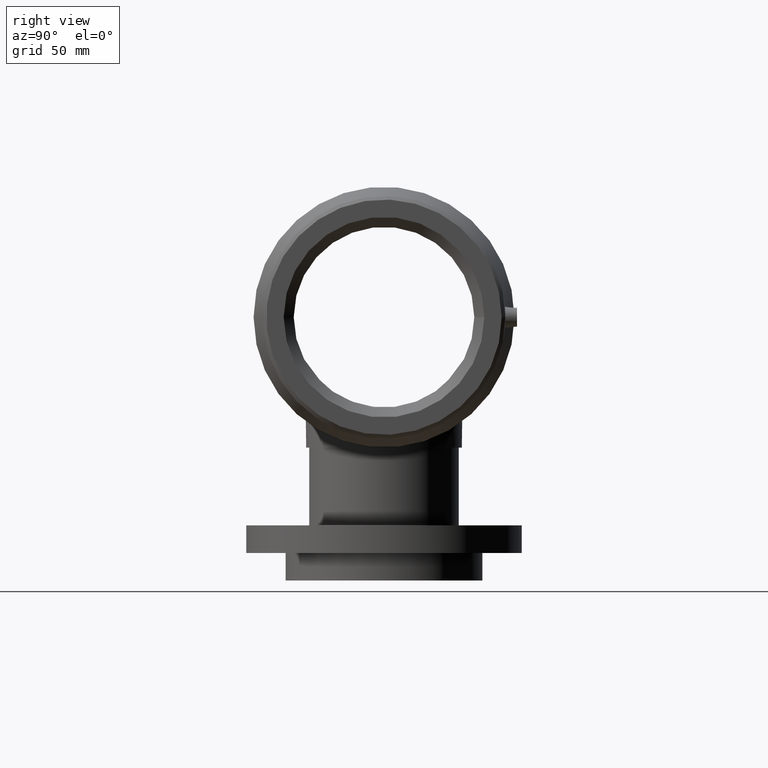
[diagram: clean part render]
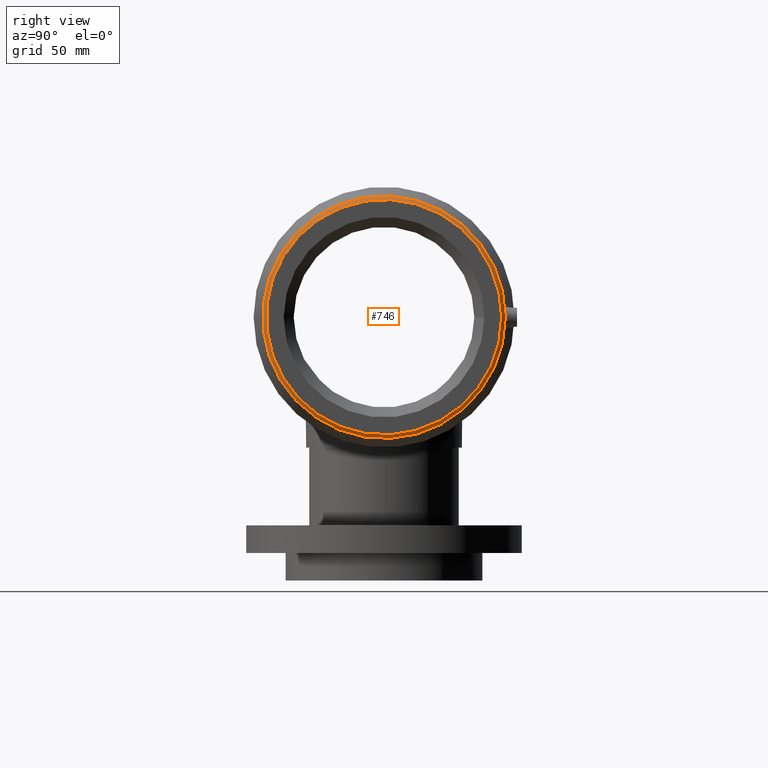
[diagram: same view with one face highlighted and labeled with its STEP entity id]
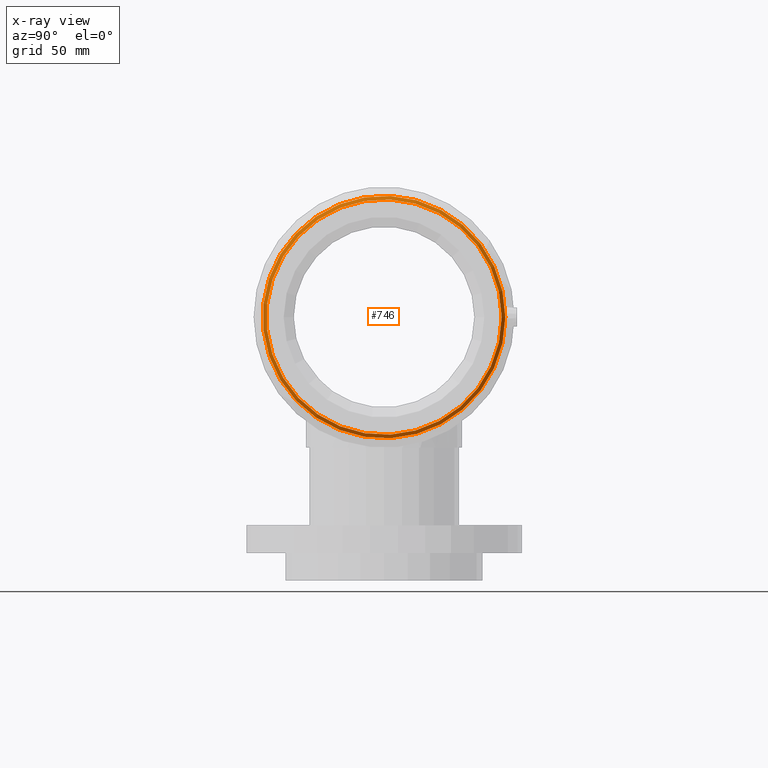
[diagram: x-ray of the same camera — body ghosted, the highlighted face saturated]
A machine part, right view. The second image highlights one B-rep face of the part: STEP entity #746.
The next image is the same camera in x-ray: the body ghosted, the highlighted face saturated — about 0% of this face is hidden behind the body in this view.
In plain terms, the highlighted conical surface has half-angle 45 deg.
Its self-contained STEP definition (entity closure, byte-faithful):
#25=CONICAL_SURFACE('',#859,95.2692,45.0000000000004);
#107=FACE_BOUND('',#386,.T.);
#172=CIRCLE('',#858,96.72);
#173=CIRCLE('',#860,93.8184);
#262=FACE_OUTER_BOUND('',#385,.T.);
#385=EDGE_LOOP('',(#671));
#386=EDGE_LOOP('',(#672));
#475=VERTEX_POINT('',#1691);
#476=VERTEX_POINT('',#1694);
#545=EDGE_CURVE('',#475,#475,#172,.T.);
#546=EDGE_CURVE('',#476,#476,#173,.T.);
#671=ORIENTED_EDGE('',*,*,#545,.T.);
#672=ORIENTED_EDGE('',*,*,#546,.F.);
#746=ADVANCED_FACE('',(#262,#107),#25,.T.);
#858=AXIS2_PLACEMENT_3D('',#1692,#1081,#1082);
#859=AXIS2_PLACEMENT_3D('',#1693,#1083,#1084);
#860=AXIS2_PLACEMENT_3D('',#1695,#1085,#1086);
#1081=DIRECTION('center_axis',(1.,0.,0.));
#1082=DIRECTION('ref_axis',(0.,0.,-1.));
#1083=DIRECTION('center_axis',(-1.,0.,0.));
#1084=DIRECTION('ref_axis',(0.,1.,0.));
#1085=DIRECTION('center_axis',(1.,0.,0.));
#1086=DIRECTION('ref_axis',(0.,0.,-1.));
#1691=CARTESIAN_POINT('',(217.0984,96.72,0.));
#1692=CARTESIAN_POINT('Origin',(217.0984,0.,0.));
#1693=CARTESIAN_POINT('Origin',(218.5492,0.,0.));
#1694=CARTESIAN_POINT('',(220.,93.8184,0.));
#1695=CARTESIAN_POINT('Origin',(220.,0.,0.));